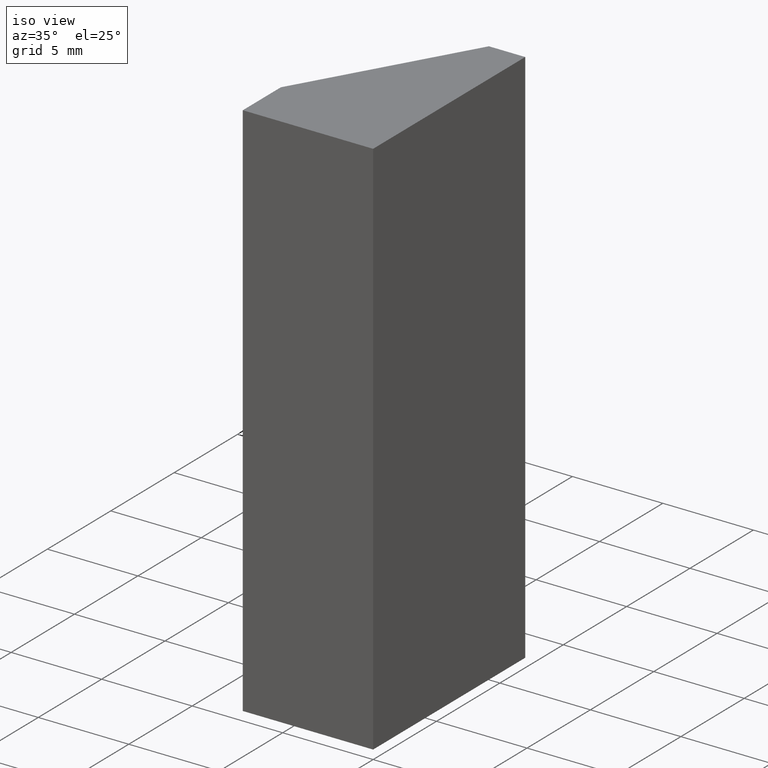
[diagram: clean part render]
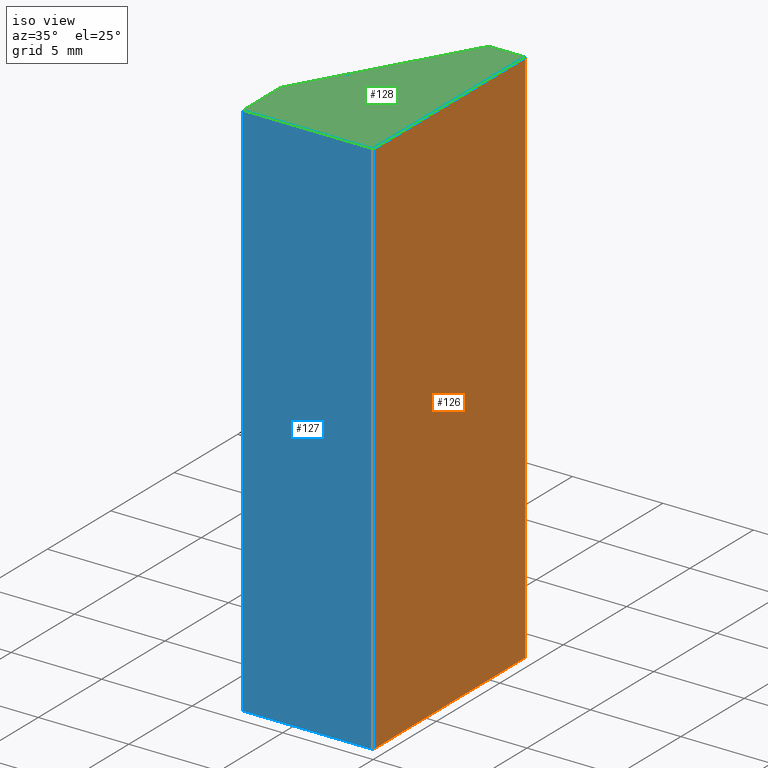
[diagram: same view with three faces highlighted in distinct colors, each labeled with its STEP entity id]
A machine part, iso view with three faces highlighted in distinct colors.
Their STEP definitions:

[orange] entity #126 — the highlighted planar face has unit normal (1, 0, 0).
#20=FACE_OUTER_BOUND('',#27,.T.);
#27=EDGE_LOOP('',(#102,#103,#104,#105));
#30=LINE('',#194,#45);
#41=LINE('',#215,#56);
#42=LINE('',#218,#57);
#43=LINE('',#219,#58);
#45=VECTOR('',#163,10.);
#56=VECTOR('',#180,10.);
#57=VECTOR('',#183,10.);
#58=VECTOR('',#184,10.);
#60=VERTEX_POINT('',#192);
#61=VERTEX_POINT('',#193);
#68=VERTEX_POINT('',#213);
#69=VERTEX_POINT('',#217);
#70=EDGE_CURVE('',#60,#61,#30,.T.);
#81=EDGE_CURVE('',#68,#61,#41,.T.);
#82=EDGE_CURVE('',#68,#69,#42,.T.);
#83=EDGE_CURVE('',#60,#69,#43,.T.);
#102=ORIENTED_EDGE('',*,*,#82,.T.);
#103=ORIENTED_EDGE('',*,*,#83,.F.);
#104=ORIENTED_EDGE('',*,*,#70,.T.);
#105=ORIENTED_EDGE('',*,*,#81,.F.);
#119=PLANE('',#156);
#126=ADVANCED_FACE('',(#20),#119,.T.);
#156=AXIS2_PLACEMENT_3D('',#216,#181,#182);
#163=DIRECTION('',(-3.14090152520747E-16,1.,0.));
#180=DIRECTION('',(0.,0.,-1.));
#181=DIRECTION('center_axis',(1.,3.14090152520747E-16,0.));
#182=DIRECTION('ref_axis',(0.,0.,-1.));
#183=DIRECTION('',(3.14090152520747E-16,-1.,0.));
#184=DIRECTION('',(0.,0.,1.));
#192=CARTESIAN_POINT('',(5.71197212334298E-15,0.,-15.));
#193=CARTESIAN_POINT('',(1.94289029309402E-15,12.,-15.));
#194=CARTESIAN_POINT('',(1.94289029309402E-15,12.,-15.));
#213=CARTESIAN_POINT('',(1.94289029309402E-15,12.,15.));
#215=CARTESIAN_POINT('',(1.94289029309402E-15,12.,0.));
#216=CARTESIAN_POINT('Origin',(1.94289029309402E-15,12.,0.));
#217=CARTESIAN_POINT('',(5.71197212334298E-15,0.,15.));
#218=CARTESIAN_POINT('',(1.94289029309402E-15,12.,15.));
#219=CARTESIAN_POINT('',(5.71197212334298E-15,0.,0.));

[blue] entity #127 — the highlighted planar face has unit normal (-0, -1, 0).
#21=FACE_OUTER_BOUND('',#28,.T.);
#28=EDGE_LOOP('',(#106,#107,#108,#109));
#31=LINE('',#196,#46);
#37=LINE('',#207,#52);
#43=LINE('',#219,#58);
#44=LINE('',#221,#59);
#46=VECTOR('',#164,10.);
#52=VECTOR('',#172,10.);
#58=VECTOR('',#184,10.);
#59=VECTOR('',#187,10.);
#60=VERTEX_POINT('',#192);
#62=VERTEX_POINT('',#195);
#65=VERTEX_POINT('',#203);
#69=VERTEX_POINT('',#217);
#71=EDGE_CURVE('',#62,#60,#31,.T.);
#77=EDGE_CURVE('',#65,#62,#37,.T.);
#83=EDGE_CURVE('',#60,#69,#43,.T.);
#84=EDGE_CURVE('',#69,#65,#44,.T.);
#106=ORIENTED_EDGE('',*,*,#84,.T.);
#107=ORIENTED_EDGE('',*,*,#77,.T.);
#108=ORIENTED_EDGE('',*,*,#71,.T.);
#109=ORIENTED_EDGE('',*,*,#83,.T.);
#120=PLANE('',#157);
#127=ADVANCED_FACE('',(#21),#120,.T.);
#157=AXIS2_PLACEMENT_3D('',#220,#185,#186);
#164=DIRECTION('',(1.,-1.46226463052677E-17,0.));
#172=DIRECTION('',(0.,0.,-1.));
#184=DIRECTION('',(0.,0.,1.));
#185=DIRECTION('center_axis',(-1.46226463052677E-17,-1.,0.));
#186=DIRECTION('ref_axis',(0.,0.,-1.));
#187=DIRECTION('',(-1.,1.46226463052677E-17,0.));
#192=CARTESIAN_POINT('',(5.71197212334298E-15,0.,-15.));
#195=CARTESIAN_POINT('',(-7.2,1.05283053397927E-16,-15.));
#196=CARTESIAN_POINT('',(5.71197212334298E-15,0.,-15.));
#203=CARTESIAN_POINT('',(-7.2,1.05283053397927E-16,15.));
#207=CARTESIAN_POINT('',(-7.2,1.05283053397927E-16,0.));
#217=CARTESIAN_POINT('',(5.71197212334298E-15,0.,15.));
#219=CARTESIAN_POINT('',(5.71197212334298E-15,0.,0.));
#220=CARTESIAN_POINT('Origin',(5.71197212334298E-15,0.,0.));
#221=CARTESIAN_POINT('',(5.71197212334298E-15,0.,15.));

[green] entity #128 — the highlighted planar face has unit normal (0, 0, 1).
#22=FACE_OUTER_BOUND('',#29,.T.);
#29=EDGE_LOOP('',(#110,#111,#112,#113,#114));
#35=LINE('',#205,#50);
#38=LINE('',#210,#53);
#40=LINE('',#214,#55);
#42=LINE('',#218,#57);
#44=LINE('',#221,#59);
#50=VECTOR('',#170,10.);
#53=VECTOR('',#175,10.);
#55=VECTOR('',#179,10.);
#57=VECTOR('',#183,10.);
#59=VECTOR('',#187,10.);
#65=VERTEX_POINT('',#203);
#66=VERTEX_POINT('',#204);
#67=VERTEX_POINT('',#209);
#68=VERTEX_POINT('',#213);
#69=VERTEX_POINT('',#217);
#75=EDGE_CURVE('',#65,#66,#35,.T.);
#78=EDGE_CURVE('',#66,#67,#38,.T.);
#80=EDGE_CURVE('',#67,#68,#40,.T.);
#82=EDGE_CURVE('',#68,#69,#42,.T.);
#84=EDGE_CURVE('',#69,#65,#44,.T.);
#110=ORIENTED_EDGE('',*,*,#75,.F.);
#111=ORIENTED_EDGE('',*,*,#84,.F.);
#112=ORIENTED_EDGE('',*,*,#82,.F.);
#113=ORIENTED_EDGE('',*,*,#80,.F.);
#114=ORIENTED_EDGE('',*,*,#78,.F.);
#121=PLANE('',#158);
#128=ADVANCED_FACE('',(#22),#121,.T.);
#158=AXIS2_PLACEMENT_3D('',#222,#188,#189);
#170=DIRECTION('',(3.70074341541719E-16,1.,0.));
#175=DIRECTION('',(0.5,0.866025403784439,0.));
#179=DIRECTION('',(1.,0.,0.));
#183=DIRECTION('',(3.14090152520747E-16,-1.,0.));
#187=DIRECTION('',(-1.,1.46226463052677E-17,0.));
#188=DIRECTION('center_axis',(0.,0.,1.));
#189=DIRECTION('ref_axis',(1.,0.,0.));
#203=CARTESIAN_POINT('',(-7.2,1.05283053397927E-16,15.));
#204=CARTESIAN_POINT('',(-7.2,3.,15.));
#205=CARTESIAN_POINT('',(-7.2,1.05283053397927E-16,15.));
#209=CARTESIAN_POINT('',(-2.00384757729337,12.,15.));
#210=CARTESIAN_POINT('',(-7.2,3.,15.));
#213=CARTESIAN_POINT('',(1.94289029309402E-15,12.,15.));
#214=CARTESIAN_POINT('',(-2.00384757729337,12.,15.));
#217=CARTESIAN_POINT('',(5.71197212334298E-15,0.,15.));
#218=CARTESIAN_POINT('',(1.94289029309402E-15,12.,15.));
#221=CARTESIAN_POINT('',(5.71197212334298E-15,0.,15.));
#222=CARTESIAN_POINT('Origin',(-2.81396313248961,5.15919964414805,15.));